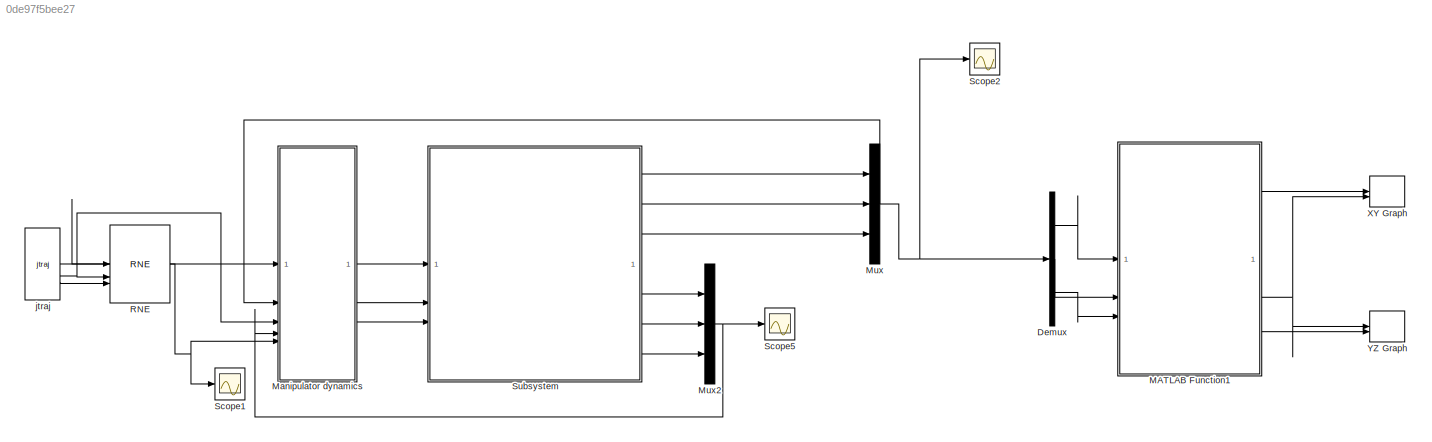
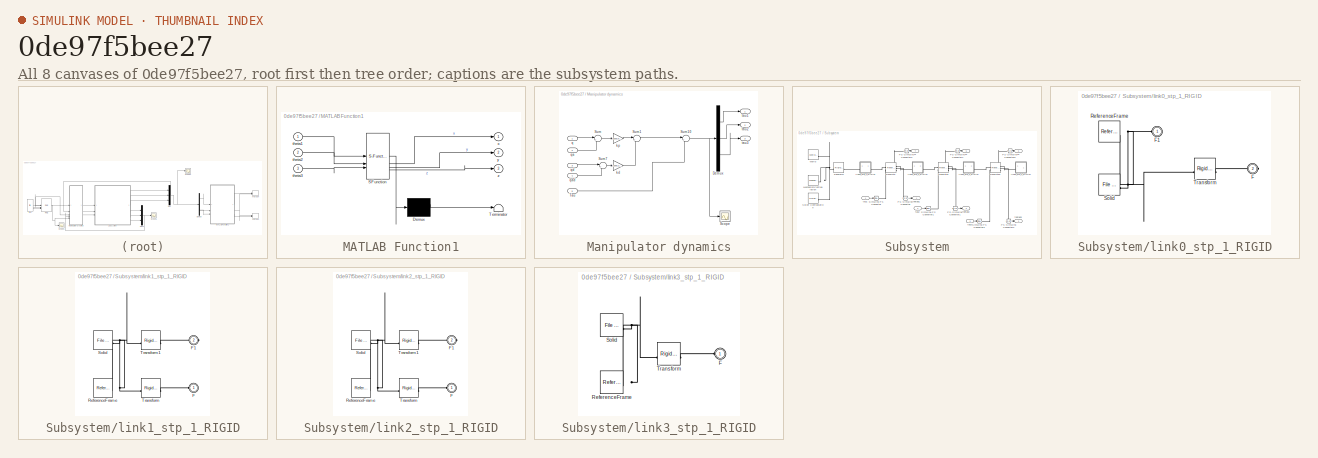
[diagram: thumbnail index - all 8 canvases of the model, root first then tree order]
MODEL slx_0de97f5bee27
KIND model
CONFIG AbsTol = auto
CONFIG EnableMultiTasking = off
CONFIG FixedStep = auto
CONFIG MaxStep = auto
CONFIG MinStep = auto
CONFIG RelTol = 1e-3
CONFIG SampleTimeConstraint = Unconstrained
CONFIG SolverName = VariableStepAuto
CONFIG StartTime = 0.0
CONFIG StopTime = 10.0
WORKSPACE source: external: MATLAB File  (data not in archive)
BLOCK [Demux] Demux
  Outputs = 3
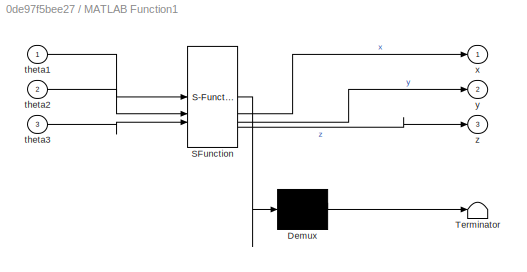
BLOCK [SubSystem] MATLAB Function1
  ErrorFcn = Stateflow.Translate.translate
  PermitHierarchicalResolution = ExplicitOnly
  SFBlockType = MATLAB Function
  TreatAsAtomicUnit = on
BLOCK [Demux] MATLAB Function1/ Demux 
  Outputs = 1
BLOCK [S-Function] MATLAB Function1/ SFunction 
  EnableBusSupport = on
  FunctionName = sf_sfun
  PortCounts = [3 4]
  SFcnIsStateOwnerBlock = off
  SFunctionDeploymentMode = off
  Tag = Stateflow S-Function 1
BLOCK [Terminator] MATLAB Function1/ Terminator 
BLOCK [Inport] MATLAB Function1/theta1
BLOCK [Inport] MATLAB Function1/theta2
  Port = 2
BLOCK [Inport] MATLAB Function1/theta3
  Port = 3
BLOCK [Outport] MATLAB Function1/x
BLOCK [Outport] MATLAB Function1/y
  Port = 2
BLOCK [Outport] MATLAB Function1/z
  Port = 3
BLOCK [SubSystem] Manipulator dynamics
BLOCK [Demux] Manipulator dynamics/Demux
  Outputs = 3
BLOCK [Scope] Manipulator dynamics/Scope
  Floating = off
  NumInputPorts = 1
  ScopeSpecificationString = Simulink.scopes.TimeScopeBlockCfg('CurrentConfiguration', extmgr.ConfigurationSet(extmgr.Configuration('Core','General UI',true),extmgr.Configuration('Core','Source UI',true),extmgr.Configuration('Sources','WiredSimulink',true,'DataLoggingVariableName','ScopeData1'),extmgr.Configuration('Visuals','Time Domain',true,'SerializedDisplays',{struct('MinYLimReal','-2.23706','MaxYLimReal','3.40051','YLab...<+1487ch>
BLOCK [Sum] Manipulator dynamics/Sum
  Inputs = |+-
BLOCK [Sum] Manipulator dynamics/Sum1
  Inputs = |++
BLOCK [Sum] Manipulator dynamics/Sum10
  Inputs = |++
BLOCK [Sum] Manipulator dynamics/Sum7
  Inputs = |+-
BLOCK [Inport] Manipulator dynamics/Tau
  NameLocation = top
  Port = 5
BLOCK [Gain] Manipulator dynamics/kd
  Gain = [2000,2000,2000]/1000
BLOCK [Gain] Manipulator dynamics/kp
  Gain = [5000,5000,5000]/1000
BLOCK [Inport] Manipulator dynamics/q
  NameLocation = top
BLOCK [Inport] Manipulator dynamics/qa
  Port = 2
BLOCK [Inport] Manipulator dynamics/qad
  Port = 4
BLOCK [Inport] Manipulator dynamics/qd
  NameLocation = top
  Port = 3
BLOCK [Outport] Manipulator dynamics/tau1
  VectorParamsAs1DForOutWhenUnconnected = off
BLOCK [Outport] Manipulator dynamics/tau2
  Port = 2
  VectorParamsAs1DForOutWhenUnconnected = off
BLOCK [Outport] Manipulator dynamics/tau3
  Port = 3
  VectorParamsAs1DForOutWhenUnconnected = off
BLOCK [Mux] Mux
  DisplayOption = bar
  Inputs = 3
BLOCK [Mux] Mux2
  DisplayOption = bar
  Inputs = 3
BLOCK [Reference] RNE  REF=roblocks/Arm/RNE  (lib defined in mdl_2a292b13c81b, mdl_69400f8cfe22, +12 more)
  SourceBlock = roblocks/Arm/RNE
BLOCK [Scope] Scope1
  Floating = off
  NumInputPorts = 1
  ScopeSpecificationString = Simulink.scopes.TimeScopeBlockCfg('CurrentConfiguration', extmgr.ConfigurationSet(extmgr.Configuration('Core','General UI',true),extmgr.Configuration('Core','Source UI',true),extmgr.Configuration('Sources','WiredSimulink',true,'DataLoggingVariableName','ScopeData2'),extmgr.Configuration('Visuals','Time Domain',true,'SerializedDisplays',{struct('MinYLimReal','-1.55356','MaxYLimReal','0.2141','YLabe...<+1455ch>
BLOCK [Scope] Scope2
  Floating = off
  NumInputPorts = 1
  ScopeSpecificationString = Simulink.scopes.TimeScopeBlockCfg('CurrentConfiguration', extmgr.ConfigurationSet(extmgr.Configuration('Core','General UI',true),extmgr.Configuration('Core','Source UI',true),extmgr.Configuration('Sources','WiredSimulink',true,'DataLoggingVariableName','ScopeData1'),extmgr.Configuration('Visuals','Time Domain',true,'SerializedDisplays',{struct('MinYLimReal','-2.2978','MaxYLimReal','2.14922','YLabe...<+1497ch>
BLOCK [Scope] Scope5
  Floating = off
  NumInputPorts = 1
  ScopeSpecificationString = Simulink.scopes.TimeScopeBlockCfg('CurrentConfiguration', extmgr.ConfigurationSet(extmgr.Configuration('Core','General UI',true),extmgr.Configuration('Core','Source UI',true),extmgr.Configuration('Sources','WiredSimulink',true),extmgr.Configuration('Visuals','Time Domain',true,'SerializedDisplays',{struct('MinYLimReal','-1.05559','MaxYLimReal','0.58418','YLabelReal','','MinYLimMag','0.00000','MaxY...<+1439ch>
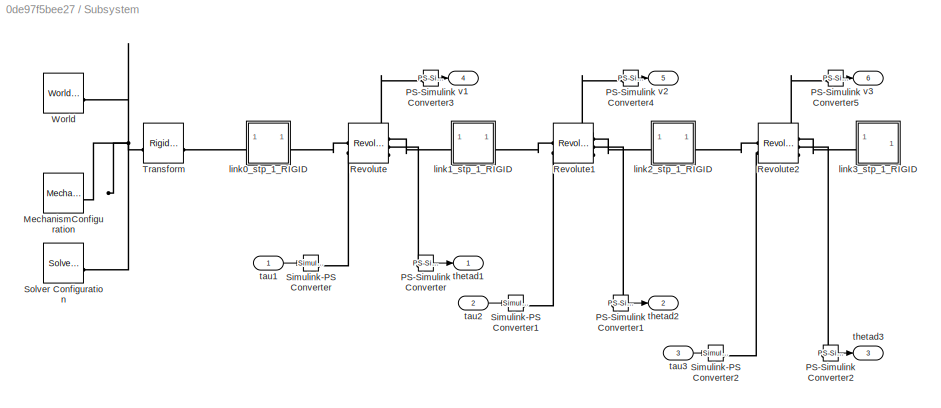
BLOCK [SubSystem] Subsystem
BLOCK [Reference] Subsystem/MechanismConfiguration  REF=sm_lib/Utilities/Mechanism
Configuration
  SourceBlock = sm_lib/Utilities/Mechanism\nConfiguration
  SourceType = Mechanism\nConfiguration
BLOCK [Reference] Subsystem/PS-Simulink Converter  REF=nesl_utility/PS-Simulink
Converter
  SourceBlock = nesl_utility/PS-Simulink\nConverter
  SourceType = PS-Simulink\nConverter
BLOCK [Reference] Subsystem/PS-Simulink Converter1  REF=nesl_utility/PS-Simulink
Converter
  SourceBlock = nesl_utility/PS-Simulink\nConverter
  SourceType = PS-Simulink\nConverter
BLOCK [Reference] Subsystem/PS-Simulink Converter2  REF=nesl_utility/PS-Simulink
Converter
  SourceBlock = nesl_utility/PS-Simulink\nConverter
  SourceType = PS-Simulink\nConverter
BLOCK [Reference] Subsystem/PS-Simulink Converter3  REF=nesl_utility/PS-Simulink
Converter
  SourceBlock = nesl_utility/PS-Simulink\nConverter
  SourceType = PS-Simulink\nConverter
BLOCK [Reference] Subsystem/PS-Simulink Converter4  REF=nesl_utility/PS-Simulink
Converter
  SourceBlock = nesl_utility/PS-Simulink\nConverter
  SourceType = PS-Simulink\nConverter
BLOCK [Reference] Subsystem/PS-Simulink Converter5  REF=nesl_utility/PS-Simulink
Converter
  SourceBlock = nesl_utility/PS-Simulink\nConverter
  SourceType = PS-Simulink\nConverter
BLOCK [Reference] Subsystem/Revolute  REF=sm_lib/Joints/Revolute Joint
  SourceBlock = sm_lib/Joints/Revolute Joint
  SourceType = Revolute Joint
BLOCK [Reference] Subsystem/Revolute1  REF=sm_lib/Joints/Revolute Joint
  SourceBlock = sm_lib/Joints/Revolute Joint
  SourceType = Revolute Joint
BLOCK [Reference] Subsystem/Revolute2  REF=sm_lib/Joints/Revolute Joint
  SourceBlock = sm_lib/Joints/Revolute Joint
  SourceType = Revolute Joint
BLOCK [Reference] Subsystem/Simulink-PS Converter  REF=nesl_utility/Simulink-PS
Converter
  SourceBlock = nesl_utility/Simulink-PS\nConverter
  SourceType = Simulink-PS\nConverter
BLOCK [Reference] Subsystem/Simulink-PS Converter1  REF=nesl_utility/Simulink-PS
Converter
  SourceBlock = nesl_utility/Simulink-PS\nConverter
  SourceType = Simulink-PS\nConverter
BLOCK [Reference] Subsystem/Simulink-PS Converter2  REF=nesl_utility/Simulink-PS
Converter
  SourceBlock = nesl_utility/Simulink-PS\nConverter
  SourceType = Simulink-PS\nConverter
BLOCK [Reference] Subsystem/Solver Configuration  REF=nesl_utility/Solver
Configuration
  SourceBlock = nesl_utility/Solver\nConfiguration
  SourceType = Solver\nConfiguration
BLOCK [Reference] Subsystem/Transform  REF=sm_lib/Frames and
Transforms/Rigid
Transform
  SourceBlock = sm_lib/Frames and\nTransforms/Rigid\nTransform
  SourceType = Rigid\nTransform
BLOCK [Reference] Subsystem/World  REF=sm_lib/Frames and
Transforms/World Frame
  SourceBlock = sm_lib/Frames and\nTransforms/World Frame
  SourceType = World Frame
BLOCK [SubSystem] Subsystem/link0_stp_1_RIGID
BLOCK [PMIOPort] Subsystem/link0_stp_1_RIGID/F
  Port = 2
  Side = Right
BLOCK [PMIOPort] Subsystem/link0_stp_1_RIGID/F1
  Side = Left
BLOCK [Reference] Subsystem/link0_stp_1_RIGID/ReferenceFrame  REF=sm_lib/Frames and
Transforms/Reference
Frame
  SourceBlock = sm_lib/Frames and\nTransforms/Reference\nFrame
  SourceType = Reference\nFrame
BLOCK [Reference] Subsystem/link0_stp_1_RIGID/Solid  REF=sm_lib/Body Elements/File Solid
  SourceBlock = sm_lib/Body Elements/File Solid
  SourceType = File Solid
BLOCK [Reference] Subsystem/link0_stp_1_RIGID/Transform  REF=sm_lib/Frames and
Transforms/Rigid
Transform
  SourceBlock = sm_lib/Frames and\nTransforms/Rigid\nTransform
  SourceType = Rigid\nTransform
BLOCK [SubSystem] Subsystem/link1_stp_1_RIGID
BLOCK [PMIOPort] Subsystem/link1_stp_1_RIGID/F
  Side = Left
BLOCK [PMIOPort] Subsystem/link1_stp_1_RIGID/F1
  Port = 2
  Side = Right
BLOCK [Reference] Subsystem/link1_stp_1_RIGID/ReferenceFrame  REF=sm_lib/Frames and
Transforms/Reference
Frame
  SourceBlock = sm_lib/Frames and\nTransforms/Reference\nFrame
  SourceType = Reference\nFrame
BLOCK [Reference] Subsystem/link1_stp_1_RIGID/Solid  REF=sm_lib/Body Elements/File Solid
  SourceBlock = sm_lib/Body Elements/File Solid
  SourceType = File Solid
BLOCK [Reference] Subsystem/link1_stp_1_RIGID/Transform  REF=sm_lib/Frames and
Transforms/Rigid
Transform
  SourceBlock = sm_lib/Frames and\nTransforms/Rigid\nTransform
  SourceType = Rigid\nTransform
BLOCK [Reference] Subsystem/link1_stp_1_RIGID/Transform1  REF=sm_lib/Frames and
Transforms/Rigid
Transform
  SourceBlock = sm_lib/Frames and\nTransforms/Rigid\nTransform
  SourceType = Rigid\nTransform
BLOCK [SubSystem] Subsystem/link2_stp_1_RIGID
BLOCK [PMIOPort] Subsystem/link2_stp_1_RIGID/F
  Side = Left
BLOCK [PMIOPort] Subsystem/link2_stp_1_RIGID/F1
  Port = 2
  Side = Right
BLOCK [Reference] Subsystem/link2_stp_1_RIGID/ReferenceFrame  REF=sm_lib/Frames and
Transforms/Reference
Frame
  SourceBlock = sm_lib/Frames and\nTransforms/Reference\nFrame
  SourceType = Reference\nFrame
BLOCK [Reference] Subsystem/link2_stp_1_RIGID/Solid  REF=sm_lib/Body Elements/File Solid
  SourceBlock = sm_lib/Body Elements/File Solid
  SourceType = File Solid
BLOCK [Reference] Subsystem/link2_stp_1_RIGID/Transform  REF=sm_lib/Frames and
Transforms/Rigid
Transform
  SourceBlock = sm_lib/Frames and\nTransforms/Rigid\nTransform
  SourceType = Rigid\nTransform
BLOCK [Reference] Subsystem/link2_stp_1_RIGID/Transform1  REF=sm_lib/Frames and
Transforms/Rigid
Transform
  SourceBlock = sm_lib/Frames and\nTransforms/Rigid\nTransform
  SourceType = Rigid\nTransform
BLOCK [SubSystem] Subsystem/link3_stp_1_RIGID
BLOCK [PMIOPort] Subsystem/link3_stp_1_RIGID/F
  Side = Left
BLOCK [Reference] Subsystem/link3_stp_1_RIGID/ReferenceFrame  REF=sm_lib/Frames and
Transforms/Reference
Frame
  SourceBlock = sm_lib/Frames and\nTransforms/Reference\nFrame
  SourceType = Reference\nFrame
BLOCK [Reference] Subsystem/link3_stp_1_RIGID/Solid  REF=sm_lib/Body Elements/File Solid
  SourceBlock = sm_lib/Body Elements/File Solid
  SourceType = File Solid
BLOCK [Reference] Subsystem/link3_stp_1_RIGID/Transform  REF=sm_lib/Frames and
Transforms/Rigid
Transform
  SourceBlock = sm_lib/Frames and\nTransforms/Rigid\nTransform
  SourceType = Rigid\nTransform
BLOCK [Inport] Subsystem/tau1
BLOCK [Inport] Subsystem/tau2
  Port = 2
BLOCK [Inport] Subsystem/tau3
  Port = 3
BLOCK [Outport] Subsystem/thetad1
BLOCK [Outport] Subsystem/thetad2
  Port = 2
BLOCK [Outport] Subsystem/thetad3
  Port = 3
BLOCK [Outport] Subsystem/v1
  Port = 4
BLOCK [Outport] Subsystem/v2
  Port = 5
BLOCK [Outport] Subsystem/v3
  Port = 6
BLOCK [Record] XY Graph
  CompatibilityTag = XY
  FileSettingsInternal = {"entries":[{"content":{"excelSettings":{"content":{},"type":"Streamout.ExcelSettings"}},"type":"Streamout.FileSettingStorage","uuid":""}],"packageUris":["http:\/\/schema.mathworks.com\/mf0\/streamout_blocks\/R2020a"],"version":"1.0"}
  Layout = [1 1]
  SignalsInternal = {"entries":[{"content":{"signals":[{"content":{"blockPath":[],"dimensions":[1],"domain":"","lineColor":"#a2142f","plots":[1],"port":1,"sid":[""],"signalID":17998,"signalName":"MATLAB Function1:1"},"type":"RecordBlkView.Signal","uuid":""},{"content":{"blockPath":[],"dimensions":[1],"domain":"","lineColor":"#139fff","plots":[1],"port":2,"sid":[""],"signalID":18002,"signalName":"MATLAB Function1:2"},...<+186ch>
  VisualizationBindings = {"xyplotplugin":{"info":[{"series":[{"bindingParametersList":[{"parameter":"X-Axis","signalID":17998,"signalName":"MATLAB Function1:1"},{"parameter":"Y-Axis","signalID":18002,"signalName":"MATLAB Function1:2"}],"seriesID":58303}],"subplotID":1}]}}
BLOCK [Record] YZ Graph
  CompatibilityTag = XY
  FileSettingsInternal = {"entries":[{"content":{"excelSettings":{"content":{},"type":"Streamout.ExcelSettings"}},"type":"Streamout.FileSettingStorage","uuid":""}],"packageUris":["http:\/\/schema.mathworks.com\/mf0\/streamout_blocks\/R2020a"],"version":"1.0"}
  Layout = [1 1]
  SignalsInternal = {"entries":[{"content":{"signals":[{"content":{"blockPath":[],"dimensions":[1],"domain":"","lineColor":"#a2142f","plots":[1],"port":1,"sid":[""],"signalID":18006,"signalName":"MATLAB Function1:2"},"type":"RecordBlkView.Signal","uuid":""},{"content":{"blockPath":[],"dimensions":[1],"domain":"","lineColor":"#139fff","plots":[1],"port":2,"sid":[""],"signalID":18010,"signalName":"MATLAB Function1:3"},...<+186ch>
  VisualizationBindings = {"xyplotplugin":{"info":[{"series":[{"bindingParametersList":[{"parameter":"X-Axis","signalID":18006,"signalName":"MATLAB Function1:2"},{"parameter":"Y-Axis","signalID":18010,"signalName":"MATLAB Function1:3"}],"seriesID":29394}],"subplotID":1}]}}
BLOCK [Reference] jtraj  REF=roblocks/Toolbox/jtraj  (lib defined in mdl_2a292b13c81b, mdl_69400f8cfe22, +12 more)
  SourceBlock = roblocks/Toolbox/jtraj
LINE Demux:1 -> MATLAB Function1:1
LINE Demux:2 -> MATLAB Function1:2
LINE Demux:3 -> MATLAB Function1:3
LINE MATLAB Function1:1 -> XY Graph:1
NET MATLAB Function1:2 -> XY Graph:2, YZ Graph:1
LINE MATLAB Function1:3 -> YZ Graph:2
LINE Manipulator dynamics/Demux:1 -> Manipulator dynamics/tau1:1
LINE Manipulator dynamics/Demux:2 -> Manipulator dynamics/tau2:1
LINE Manipulator dynamics/Demux:3 -> Manipulator dynamics/tau3:1
NET Manipulator dynamics/Sum10:1 -> Manipulator dynamics/Demux:1, Manipulator dynamics/Scope:1
LINE Manipulator dynamics/Sum1:1 -> Manipulator dynamics/Sum10:1
LINE Manipulator dynamics/Sum7:1 -> Manipulator dynamics/kd:1
LINE Manipulator dynamics/Sum:1 -> Manipulator dynamics/kp:1
LINE Manipulator dynamics/Tau:1 -> Manipulator dynamics/Sum10:2
LINE Manipulator dynamics/kd:1 -> Manipulator dynamics/Sum1:2
LINE Manipulator dynamics/kp:1 -> Manipulator dynamics/Sum1:1
LINE Manipulator dynamics/q:1 -> Manipulator dynamics/Sum:1
LINE Manipulator dynamics/qa:1 -> Manipulator dynamics/Sum:2
LINE Manipulator dynamics/qad:1 -> Manipulator dynamics/Sum7:2
LINE Manipulator dynamics/qd:1 -> Manipulator dynamics/Sum7:1
LINE Manipulator dynamics:1 -> Subsystem:1
LINE Manipulator dynamics:2 -> Subsystem:2
LINE Manipulator dynamics:3 -> Subsystem:3
NET Mux2:1 -> Manipulator dynamics:4, Scope5:1
NET Mux:1 -> Demux:1, Manipulator dynamics:2, Scope2:1
NET RNE:1 -> Manipulator dynamics:5, Scope1:1
LINE Subsystem/PS-Simulink Converter1:1 -> Subsystem/thetad2:1
LINE Subsystem/PS-Simulink Converter2:1 -> Subsystem/thetad3:1
LINE Subsystem/PS-Simulink Converter3:1 -> Subsystem/v1:1
LINE Subsystem/PS-Simulink Converter4:1 -> Subsystem/v2:1
LINE Subsystem/PS-Simulink Converter5:1 -> Subsystem/v3:1
LINE Subsystem/PS-Simulink Converter:1 -> Subsystem/thetad1:1
LINE Subsystem/tau1:1 -> Subsystem/Simulink-PS Converter:1
LINE Subsystem/tau2:1 -> Subsystem/Simulink-PS Converter1:1
LINE Subsystem/tau3:1 -> Subsystem/Simulink-PS Converter2:1
LINE Subsystem:1 -> Mux:1
LINE Subsystem:2 -> Mux:2
LINE Subsystem:3 -> Mux:3
LINE Subsystem:4 -> Mux2:1
LINE Subsystem:5 -> Mux2:2
LINE Subsystem:6 -> Mux2:3
NET jtraj:1 -> Manipulator dynamics:1, RNE:1
NET jtraj:2 -> Manipulator dynamics:3, RNE:2
LINE jtraj:3 -> RNE:3
PNET net1: Subsystem/MechanismConfiguration:RConn1 -- Subsystem/Solver Configuration:RConn1 -- Subsystem/Transform:LConn1 -- Subsystem/World:RConn1
PLINE Subsystem/PS-Simulink Converter1:LConn1 -- Subsystem/Revolute1:RConn2
PLINE Subsystem/PS-Simulink Converter2:LConn1 -- Subsystem/Revolute2:RConn2
PLINE Subsystem/PS-Simulink Converter3:LConn1 -- Subsystem/Revolute:RConn3
PLINE Subsystem/PS-Simulink Converter4:LConn1 -- Subsystem/Revolute1:RConn3
PLINE Subsystem/PS-Simulink Converter5:LConn1 -- Subsystem/Revolute2:RConn3
PLINE Subsystem/PS-Simulink Converter:LConn1 -- Subsystem/Revolute:RConn2
PLINE Subsystem/Revolute1:LConn1 -- Subsystem/link1_stp_1_RIGID:RConn1
PLINE Subsystem/Revolute1:LConn2 -- Subsystem/Simulink-PS Converter1:RConn1
PLINE Subsystem/Revolute1:RConn1 -- Subsystem/link2_stp_1_RIGID:LConn1
PLINE Subsystem/Revolute2:LConn1 -- Subsystem/link2_stp_1_RIGID:RConn1
PLINE Subsystem/Revolute2:LConn2 -- Subsystem/Simulink-PS Converter2:RConn1
PLINE Subsystem/Revolute2:RConn1 -- Subsystem/link3_stp_1_RIGID:LConn1
PLINE Subsystem/Revolute:LConn1 -- Subsystem/link0_stp_1_RIGID:RConn1
PLINE Subsystem/Revolute:LConn2 -- Subsystem/Simulink-PS Converter:RConn1
PLINE Subsystem/Revolute:RConn1 -- Subsystem/link1_stp_1_RIGID:LConn1
PLINE Subsystem/Transform:RConn1 -- Subsystem/link0_stp_1_RIGID:LConn1
PNET net2: Subsystem/link0_stp_1_RIGID/F1:RConn1 -- Subsystem/link0_stp_1_RIGID/ReferenceFrame:RConn1 -- Subsystem/link0_stp_1_RIGID/Solid:RConn1 -- Subsystem/link0_stp_1_RIGID/Transform:LConn1
PLINE Subsystem/link0_stp_1_RIGID/F:RConn1 -- Subsystem/link0_stp_1_RIGID/Transform:RConn1
PLINE Subsystem/link1_stp_1_RIGID/F1:RConn1 -- Subsystem/link1_stp_1_RIGID/Transform1:RConn1
PLINE Subsystem/link1_stp_1_RIGID/F:RConn1 -- Subsystem/link1_stp_1_RIGID/Transform:RConn1
PNET net3: Subsystem/link1_stp_1_RIGID/ReferenceFrame:RConn1 -- Subsystem/link1_stp_1_RIGID/Solid:RConn1 -- Subsystem/link1_stp_1_RIGID/Transform1:LConn1 -- Subsystem/link1_stp_1_RIGID/Transform:LConn1
PLINE Subsystem/link2_stp_1_RIGID/F1:RConn1 -- Subsystem/link2_stp_1_RIGID/Transform1:RConn1
PLINE Subsystem/link2_stp_1_RIGID/F:RConn1 -- Subsystem/link2_stp_1_RIGID/Transform:RConn1
PNET net4: Subsystem/link2_stp_1_RIGID/ReferenceFrame:RConn1 -- Subsystem/link2_stp_1_RIGID/Solid:RConn1 -- Subsystem/link2_stp_1_RIGID/Transform1:LConn1 -- Subsystem/link2_stp_1_RIGID/Transform:LConn1
PLINE Subsystem/link3_stp_1_RIGID/F:RConn1 -- Subsystem/link3_stp_1_RIGID/Transform:RConn1
PNET net5: Subsystem/link3_stp_1_RIGID/ReferenceFrame:RConn1 -- Subsystem/link3_stp_1_RIGID/Solid:RConn1 -- Subsystem/link3_stp_1_RIGID/Transform:LConn1
note: NET lines group one-source signal fan-out (src -> all destinations, sorted); 1:1 wires keep LINE; PNET lines group multi-terminal physical nets as a canonical sorted terminal list (undirected conserving connections); 2-terminal nets keep the pairwise PLINE form
CHART MATLAB Function1 states=1 transitions=1
  STATE_LABEL 'eML_blk_kernel()'
  STATE_LABEL 'SCRIPT:\nfunction [x, y, z] = forward_kinematics(theta1, theta2, theta3)\n    % 运动学参数\n    l1 = 73.5/1000; % 连杆 1 长度 (m)\n    l2 = 250/1000; % 连杆 2 长度 (m)\n    l3 = 350/1000; % 连杆 3 长度 (m)\n    \n    % 关节偏移角（转换为弧度）\n    offset1 = 97.661581997810416 * pi/180;\n    offset2 = -89.473812640630314 * pi/180;\n    offset3 = 91.345607359572639 * pi/180;\n    \n    % 计算修正后的关节角度\n    theta1_corrected = theta1 + offset1;...<+478ch>'
CHART  states=0 transitions=0
